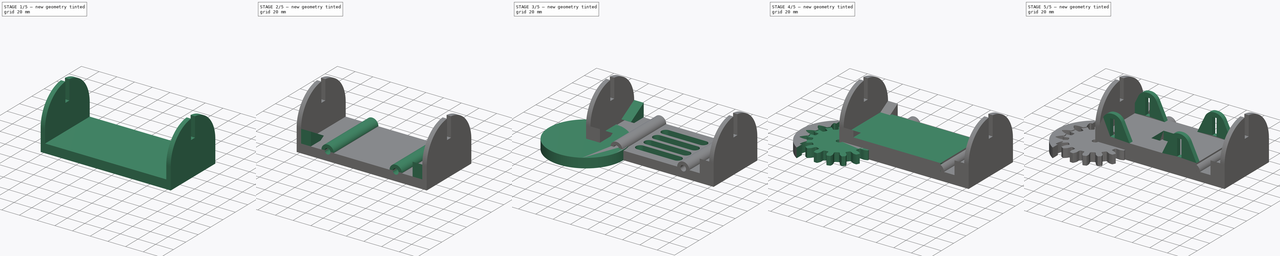
[diagram: build sequence overview — one tinted view per stage of 5, left to right]
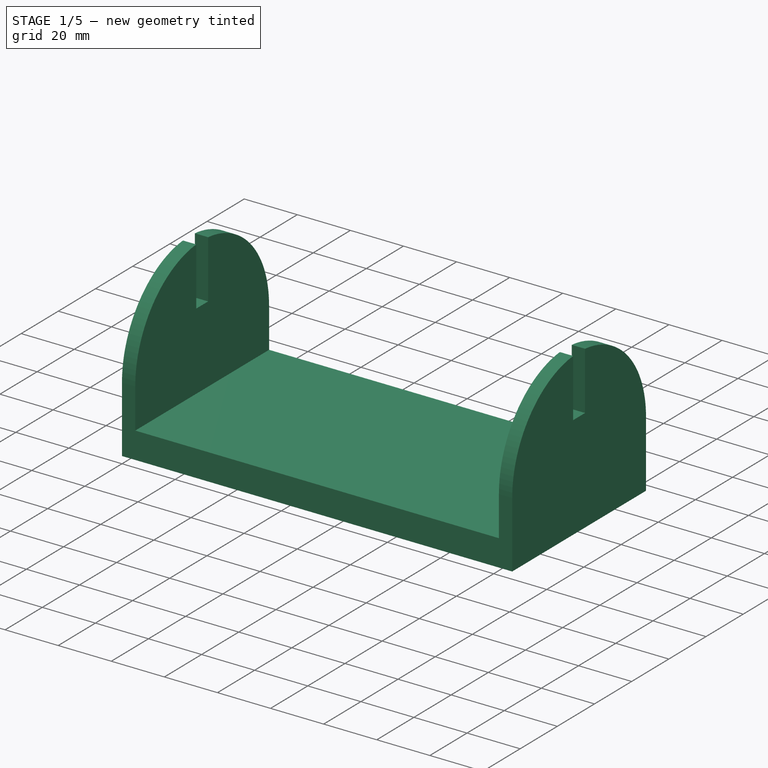
[diagram: stage 1 of 5 — iso view after this stage's code; geometry added in this stage tinted green]
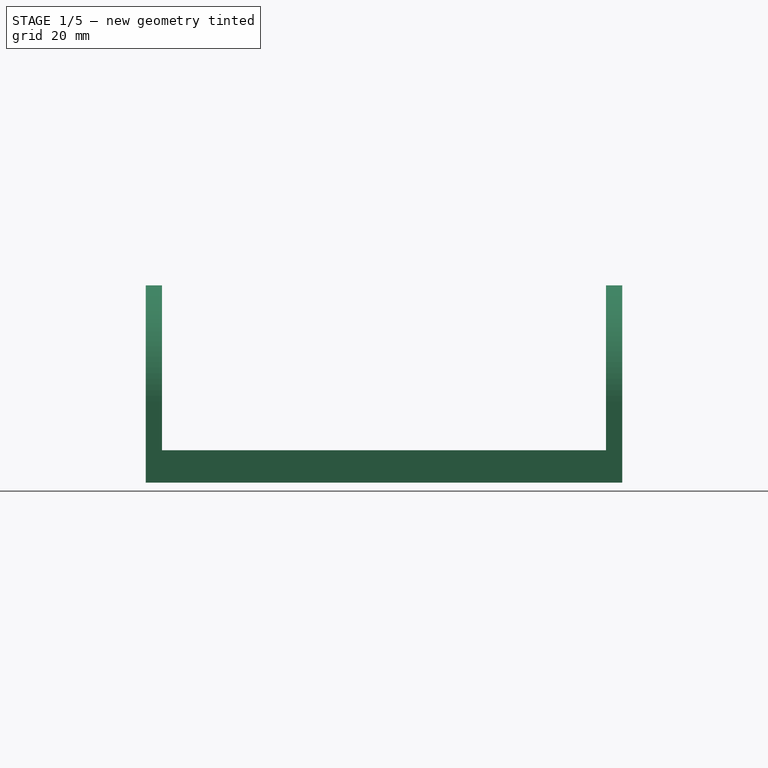
[diagram: stage 1 of 5 — front view after this stage's code; geometry added in this stage tinted green]
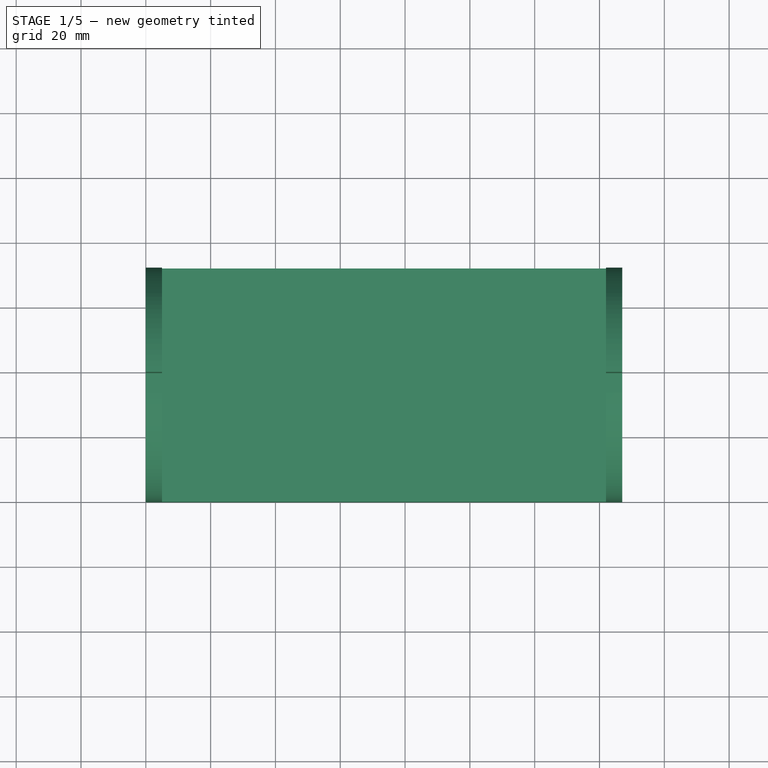
[diagram: stage 1 of 5 — top view after this stage's code; geometry added in this stage tinted green]
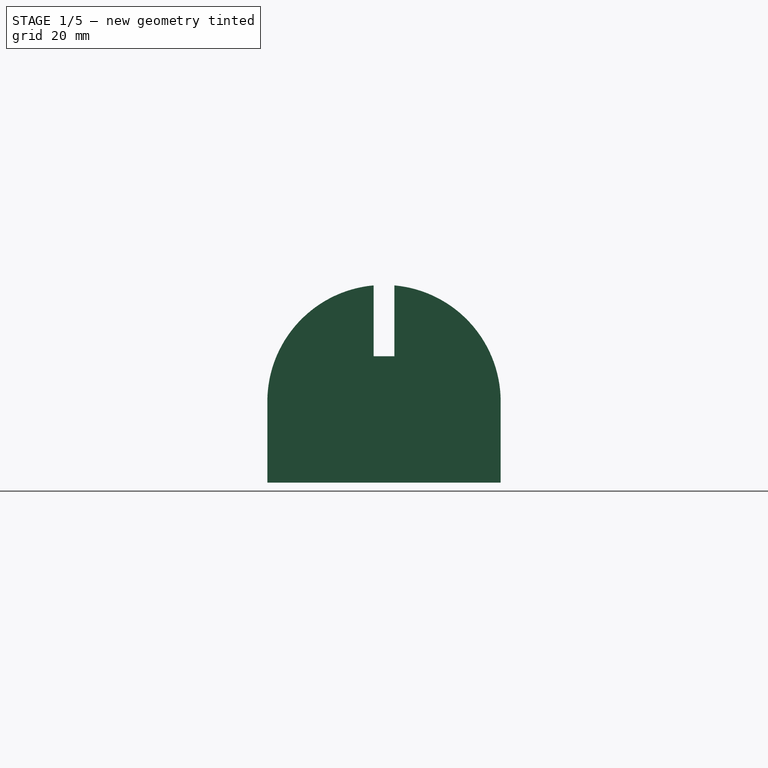
[diagram: stage 1 of 5 — right view after this stage's code; geometry added in this stage tinted green]
FCSTD DOCUMENT  (FreeCAD 0.20R29603 (Git))
Label: 24v Fan Support
License: All rights reserved
LicenseURL: http://en.wikipedia.org/wiki/All_rights_reserved
objects: PartDesign::Body×5, PartDesign::AdditiveCylinder×5, PartDesign::AdditiveBox×4, PartDesign::SubtractiveBox×4, PartDesign::SubtractiveCylinder×4, PartDesign::AdditivePrism×4, Sketcher::SketchObject×2, PartDesign::Pad×2, PartDesign::LinearPattern×2, Part::Part2DObjectPython×2, PartDesign::Pocket×2, PartDesign::Fillet×1, PartDesign::SubtractivePrism×1, App::Link×1
note: 65 computed .brp shape members not serialized (recipe doc carries the construction recipe); baked Part::Feature solids carry a one-line shape summary decoded from their .brp

FEATURE [PartDesign::Body] Body002  label="Base Gear"
  Group = -> [InvoluteGear001,Cylinder002,Box003,Pocket]
  Origin = -> Origin002
  Placement = pos=(-2e-15,31,9) rot=(0,-1,0;1.5708rad)
  Tip = -> Pocket
FEATURE [PartDesign::AdditiveBox] Box004
  AttacherType = Attacher::AttachEngine3D
  Height = 10
  Length = 147
  MapMode = 5
  Support = -> [XY_Plane003]
  Width = 72
FEATURE [PartDesign::AdditiveBox] Box005
  AttacherType = Attacher::AttachEngine3D
  AttachmentOffset = pos=(0,0,10) rot=(0,0,1;0rad)
  BaseFeature = -> Box004
  Height = 15
  Length = 5
  MapMode = 5
  Placement = pos=(0,0,10) rot=(0,0,1;0rad)
  Support = -> [XY_Plane003]
  Width = 72
FEATURE [PartDesign::AdditiveCylinder] Cylinder003
  Angle = 180
  AttacherType = Attacher::AttachEngine3D
  AttachmentOffset = pos=(36,25,0) rot=(0,0,1;0rad)
  BaseFeature = -> Box005
  FirstAngle = 0
  Height = 5
  MapMode = 5
  Placement = pos=(2.4e-15,36,25) rot=(0.57735,0.57735,0.57735;2.0944rad)
  Radius = 36
  SecondAngle = 0
  Support = -> [YZ_Plane003]
FEATURE [App::Link] Link  label="Base Gear 2"
  LinkPlacement = pos=(126,31,9.00002) rot=(0,-1,0;1.5708rad)
  LinkedObject = -> Body002
  Placement = pos=(126,31,9.00002) rot=(0,-1,0;1.5708rad)
FEATURE [PartDesign::AdditiveBox] Box006
  AttacherType = Attacher::AttachEngine3D
  AttachmentOffset = pos=(142,0,10) rot=(0,0,1;0rad)
  BaseFeature = -> Cylinder003
  Height = 15
  Length = 5
  MapMode = 5
  Placement = pos=(142,0,10) rot=(0,0,1;0rad)
  Support = -> [XY_Plane003]
  Width = 72
FEATURE [PartDesign::AdditiveCylinder] Cylinder004
  Angle = 180
  AttacherType = Attacher::AttachEngine3D
  AttachmentOffset = pos=(36,25,142) rot=(0,0,1;0rad)
  BaseFeature = -> Box006
  FirstAngle = 0
  Height = 5
  MapMode = 5
  Placement = pos=(142,36,25) rot=(0.57735,0.57735,0.57735;2.0944rad)
  Radius = 36
  SecondAngle = 0
  Support = -> [YZ_Plane003]
FEATURE [PartDesign::SubtractiveBox] Box007
  AttacherType = Attacher::AttachEngine3D
  AttachmentOffset = pos=(0,32.8,39) rot=(0,0,1;0rad)
  BaseFeature = -> Cylinder004
  Height = 22
  Length = 147
  MapMode = 5
  Placement = pos=(0,32.8,39) rot=(0,0,1;0rad)
  Support = -> [XY_Plane003]
  Width = 6.4
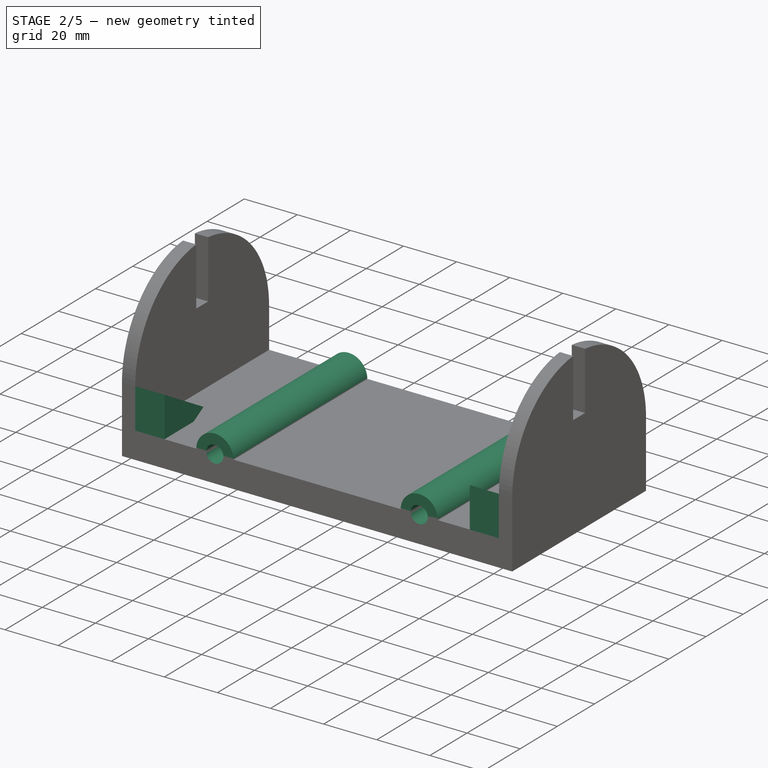
[diagram: stage 2 of 5 — iso view after this stage's code; geometry added in this stage tinted green]
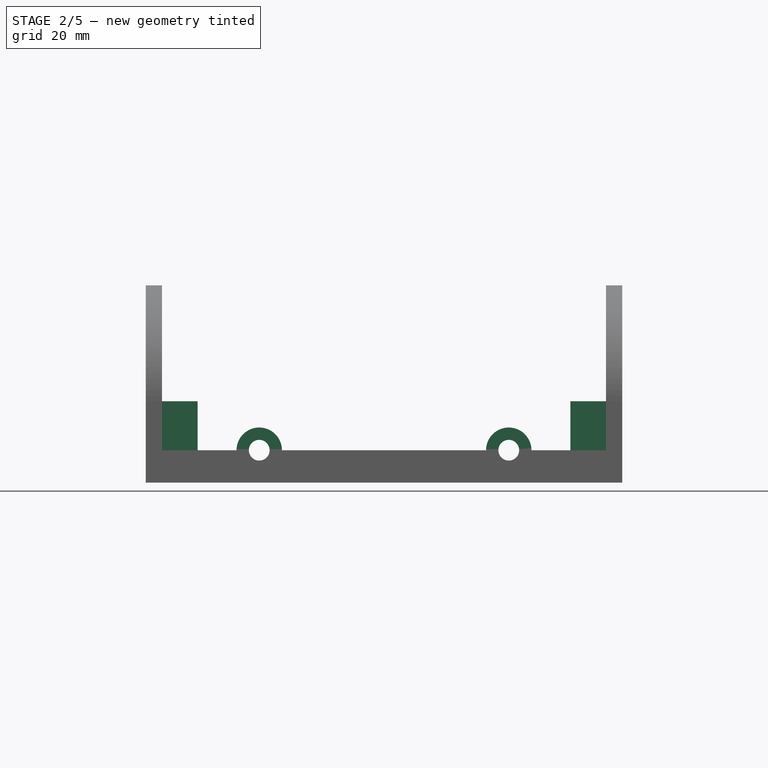
[diagram: stage 2 of 5 — front view after this stage's code; geometry added in this stage tinted green]
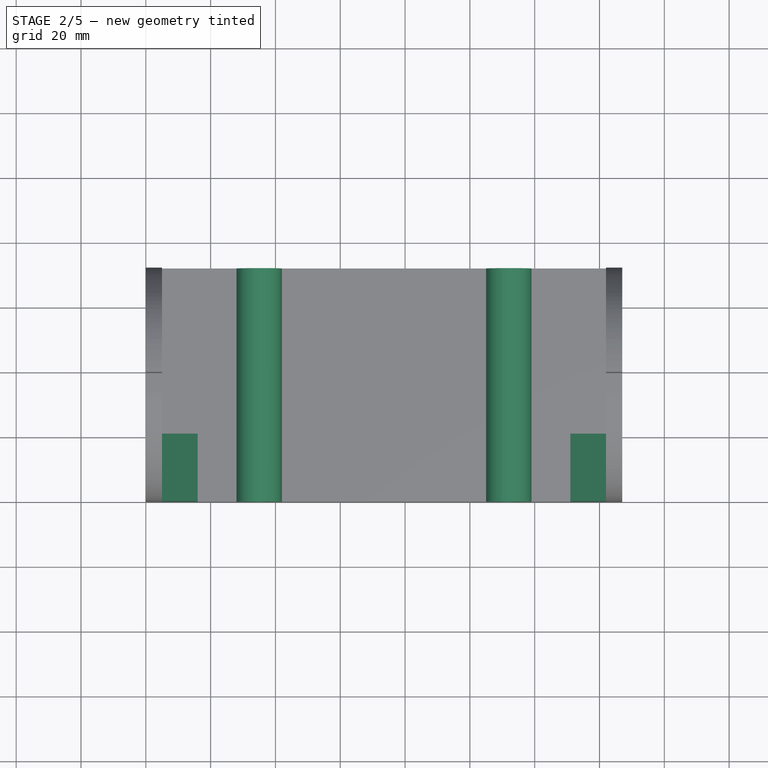
[diagram: stage 2 of 5 — top view after this stage's code; geometry added in this stage tinted green]
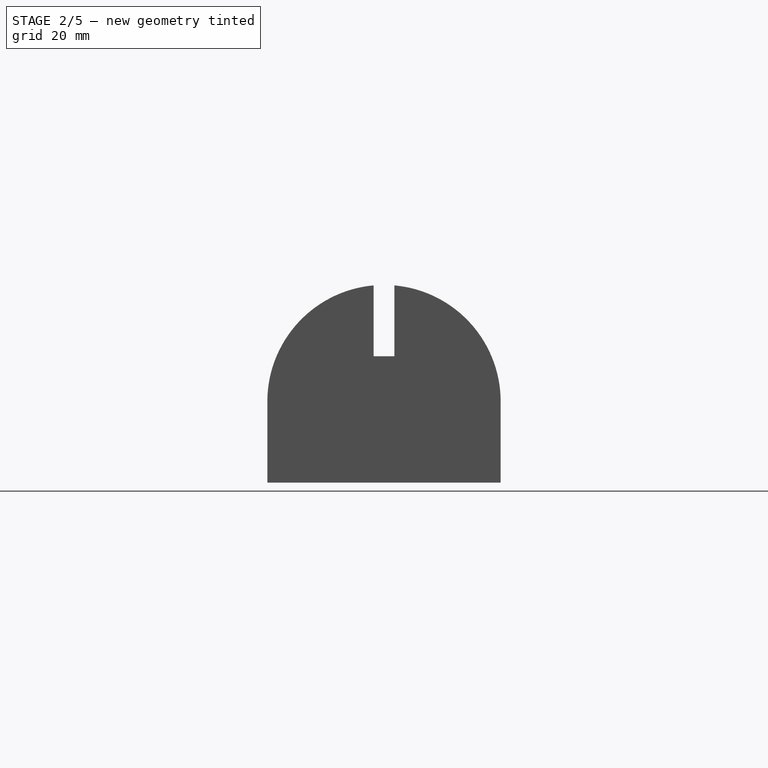
[diagram: stage 2 of 5 — right view after this stage's code; geometry added in this stage tinted green]
FEATURE [PartDesign::AdditiveCylinder] Cylinder005
  Angle = 360
  AttacherType = Attacher::AttachEngine3D
  AttachmentOffset = pos=(35,10,-72) rot=(0,0,1;0rad)
  BaseFeature = -> Box007
  FirstAngle = 0
  Height = 72
  MapMode = 5
  Placement = pos=(35,72,10) rot=(1,0,0;1.5708rad)
  Radius = 7
  SecondAngle = 0
  Support = -> [XZ_Plane003]
FEATURE [PartDesign::AdditiveCylinder] Cylinder006
  Angle = 360
  AttacherType = Attacher::AttachEngine3D
  AttachmentOffset = pos=(112,10,-72) rot=(0,0,1;0rad)
  BaseFeature = -> Cylinder005
  FirstAngle = 0
  Height = 72
  MapMode = 5
  Placement = pos=(112,72,10) rot=(1,0,0;1.5708rad)
  Radius = 7
  SecondAngle = 0
  Support = -> [XZ_Plane003]
FEATURE [PartDesign::SubtractiveCylinder] Cylinder007
  Angle = 360
  AttacherType = Attacher::AttachEngine3D
  AttachmentOffset = pos=(35,10,-72) rot=(0,0,1;0rad)
  BaseFeature = -> Cylinder006
  FirstAngle = 0
  Height = 72
  MapMode = 5
  Placement = pos=(35,72,10) rot=(1,0,0;1.5708rad)
  Radius = 3.2
  SecondAngle = 0
  Support = -> [XZ_Plane003]
FEATURE [PartDesign::SubtractiveCylinder] Cylinder008
  Angle = 360
  AttacherType = Attacher::AttachEngine3D
  AttachmentOffset = pos=(112,10,-72) rot=(0,0,1;0rad)
  BaseFeature = -> Cylinder007
  FirstAngle = 0
  Height = 72
  MapMode = 5
  Placement = pos=(112,72,10) rot=(1,0,0;1.5708rad)
  Radius = 3.2
  SecondAngle = 0
  Support = -> [XZ_Plane003]
FEATURE [PartDesign::AdditivePrism] Prism001
  AttacherType = Attacher::AttachEngine3D
  AttachmentOffset = pos=(7,13,5) rot=(0,0,1;0rad)
  BaseFeature = -> Cylinder008
  Circumradius = 14
  FirstAngle = 0
  Height = 11
  MapMode = 5
  Placement = pos=(5,7,13) rot=(0.57735,0.57735,0.57735;2.0944rad)
  Polygon = 3
  SecondAngle = 0
  Support = -> [YZ_Plane003]
FEATURE [PartDesign::AdditivePrism] Prism002
  AttacherType = Attacher::AttachEngine3D
  AttachmentOffset = pos=(7,13,131) rot=(0,0,1;0rad)
  BaseFeature = -> Prism001
  Circumradius = 14
  FirstAngle = 0
  Height = 11
  MapMode = 5
  Placement = pos=(131,7,13) rot=(0.57735,0.57735,0.57735;2.0944rad)
  Polygon = 3
  SecondAngle = 0
  Support = -> [YZ_Plane003]
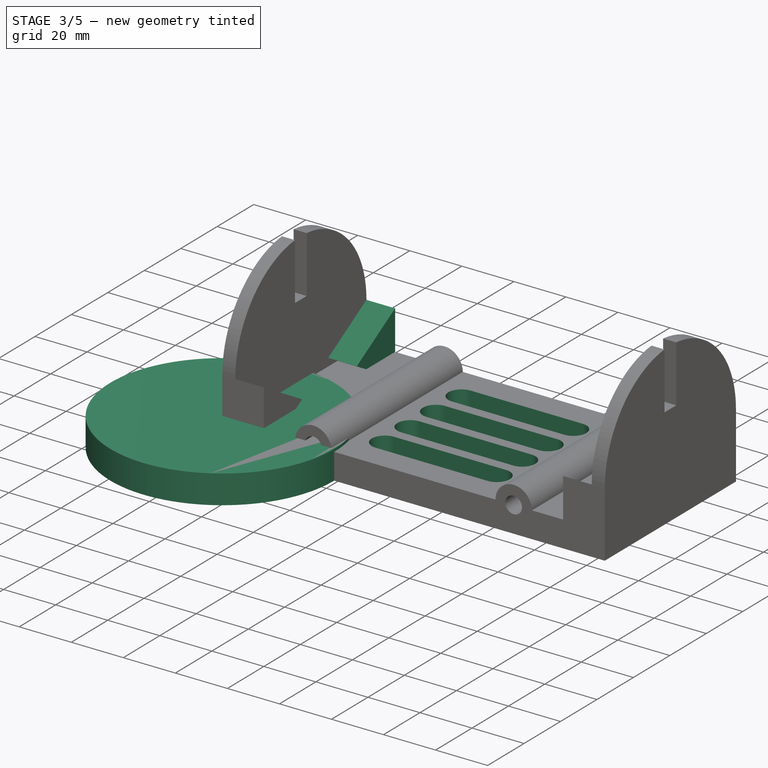
[diagram: stage 3 of 5 — iso view after this stage's code; geometry added in this stage tinted green]
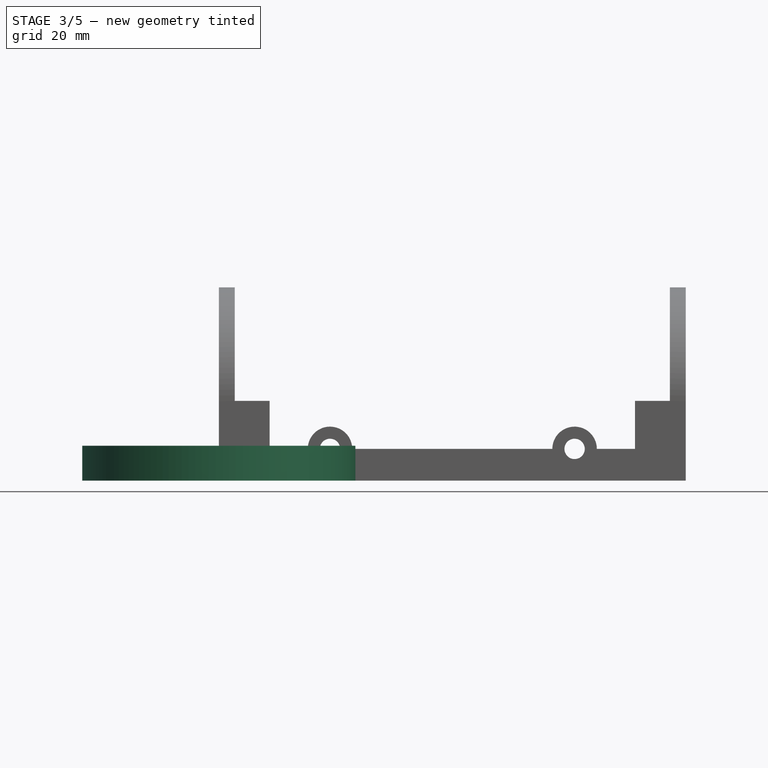
[diagram: stage 3 of 5 — front view after this stage's code; geometry added in this stage tinted green]
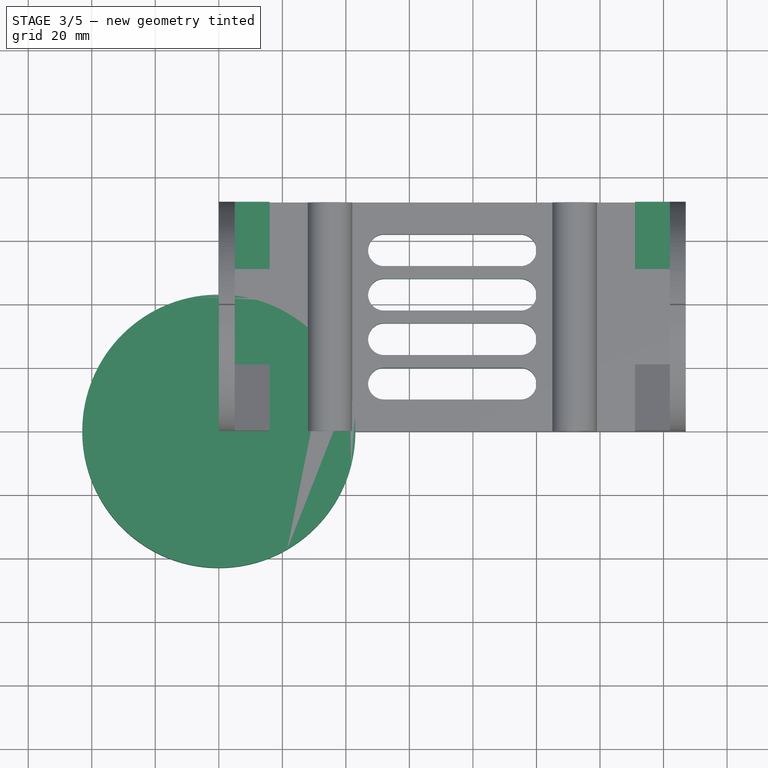
[diagram: stage 3 of 5 — top view after this stage's code; geometry added in this stage tinted green]
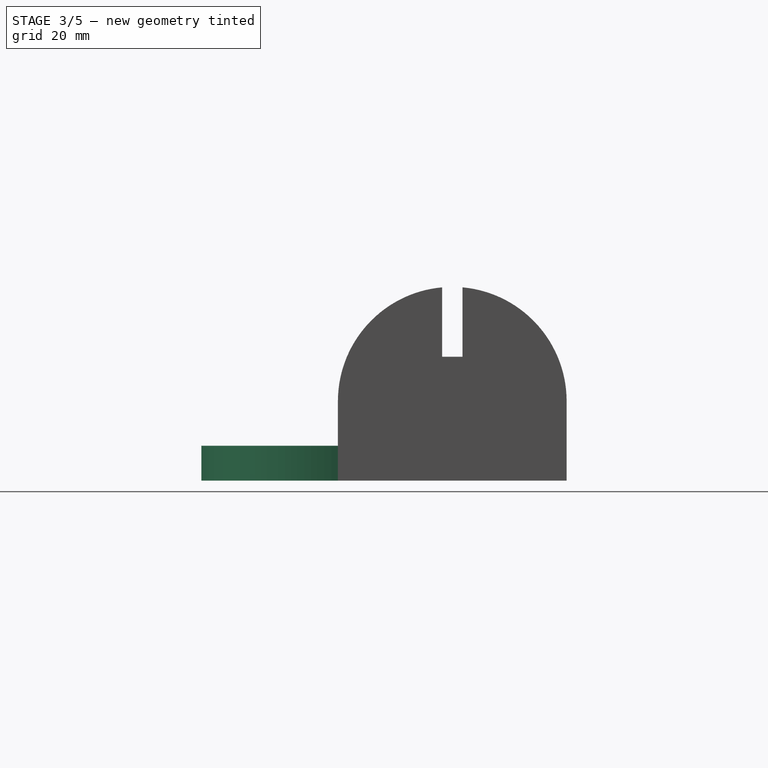
[diagram: stage 3 of 5 — right view after this stage's code; geometry added in this stage tinted green]
FEATURE [PartDesign::Body] Body001  label="Gears"
  Group = -> [InvoluteGear,Pad001,Prism,Cylinder001]
  Origin = -> Origin001
  Placement = pos=(-10,31,9) rot=(0,1,0;1.5708rad)
  Tip = -> Cylinder001
FEATURE [Part::Part2DObjectPython] InvoluteGear001  # Draft 2D object (typed FeaturePython)
  ExternalGear = false
  HighPrecision = true
  Modules = 4.4
  NumberOfTeeth = 15
  PressureAngle = 29
FEATURE [PartDesign::AdditiveCylinder] Cylinder002
  Angle = 360
  AttacherType = Attacher::AttachEngine3D
  FirstAngle = 0
  Height = 11
  Radius = 43
  SecondAngle = 0
FEATURE [PartDesign::AdditivePrism] Prism003
  AttacherType = Attacher::AttachEngine3D
  AttachmentOffset = pos=(65,13,131) rot=(0,0,1;3.14159rad)
  BaseFeature = -> Prism002
  Circumradius = 14
  FirstAngle = 0
  Height = 11
  MapMode = 5
  Placement = pos=(131,65,13) rot=(0.57735,-0.57735,0.57735;4.18879rad)
  Polygon = 3
  SecondAngle = 0
  Support = -> [YZ_Plane003]
FEATURE [PartDesign::AdditivePrism] Prism004
  AttacherType = Attacher::AttachEngine3D
  AttachmentOffset = pos=(65,13,5) rot=(0,0,1;3.14159rad)
  BaseFeature = -> Prism003
  Circumradius = 14
  FirstAngle = 0
  Height = 11
  MapMode = 5
  Placement = pos=(5,65,13) rot=(0.57735,-0.57735,0.57735;4.18879rad)
  Polygon = 3
  SecondAngle = 0
  Support = -> [YZ_Plane003]
FEATURE [Sketcher::SketchObject] Sketch001
  FullyConstrained = true
  MapMode = 5
  Support = -> [XY_Plane003]
  sketch-geometry (4):
    g0: ArcOfCircle CenterX=52 CenterY=15 CenterZ=0 NormalX=0 NormalY=0 NormalZ=1 AngleXU=0 Radius=5 StartAngle=1.5708 EndAngle=4.71239
    g1: ArcOfCircle CenterX=95 CenterY=15 CenterZ=0 NormalX=0 NormalY=0 NormalZ=1 AngleXU=0 Radius=5 StartAngle=4.71239 EndAngle=7.85398
    g2: LineSegment StartX=52 StartY=10 StartZ=0 EndX=95 EndY=10 EndZ=0
    g3: LineSegment StartX=95 StartY=20 StartZ=0 EndX=52 EndY=20 EndZ=0
  constraints (10):
    c: Tangent(g0,g2) = -1.5708
    c: Tangent(g2,g1) = -1.5708
    c: Tangent(g1,g3) = -1.5708
    c: Tangent(g3,g0) = -1.5708
    c: Equal(g0,g1)
    c: Horizontal(g2)
    c: DistanceX(g-1,g0) = 52
    c: DistanceX(g0,g1) = 43
    c: DistanceY(g-1,g0) = 15
    c: DistanceY(g1,g1) = 10
FEATURE [PartDesign::Pocket] Pocket001
  BaseFeature = -> Prism004
  Direction = (0,0,-1)
  Length = 10
  Length2 = 5
  Placement = pos=(5,65,13) rot=(0.57735,-0.57735,0.57735;4.18879rad)
  Profile = -> Sketch001
  ReferenceAxis = -> Sketch001 [N_Axis]
  Reversed = true
  Type = 0
FEATURE [PartDesign::LinearPattern] LinearPattern001
  BaseFeature = -> Pocket001
  Direction = -> Sketch001 [V_Axis]
  Length = 42
  Occurrences = 4
  Originals = -> [Pocket001]
  Placement = pos=(5,65,13) rot=(0.57735,-0.57735,0.57735;4.18879rad)
FEATURE [PartDesign::Body] Body003  label="Base"
  Group = -> [Box004,Box005,Cylinder003,Box006,Cylinder004,Box007,Cylinder005,Cylinder006,Cylinder007,Cylinder008,Prism001,Prism002,Prism003,Prism004,Sketch001,Pocket001,LinearPattern001]
  Origin = -> Origin003
  Placement = pos=(-16,-5,-39) rot=(0,0,1;0rad)
  Tip = -> LinearPattern001
FEATURE [PartDesign::Body] Body004  label="Tail"
  Origin = -> Origin004
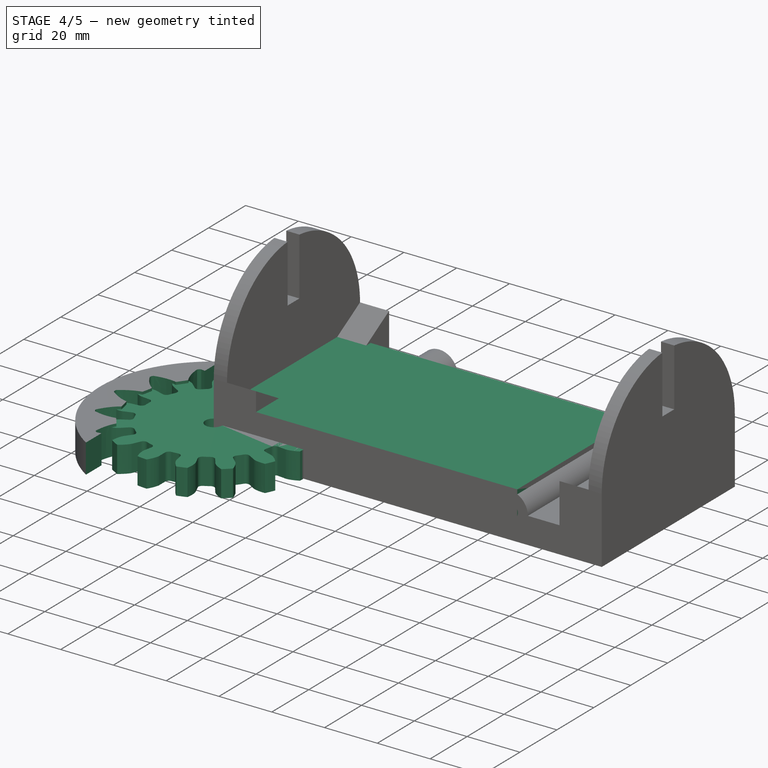
[diagram: stage 4 of 5 — iso view after this stage's code; geometry added in this stage tinted green]
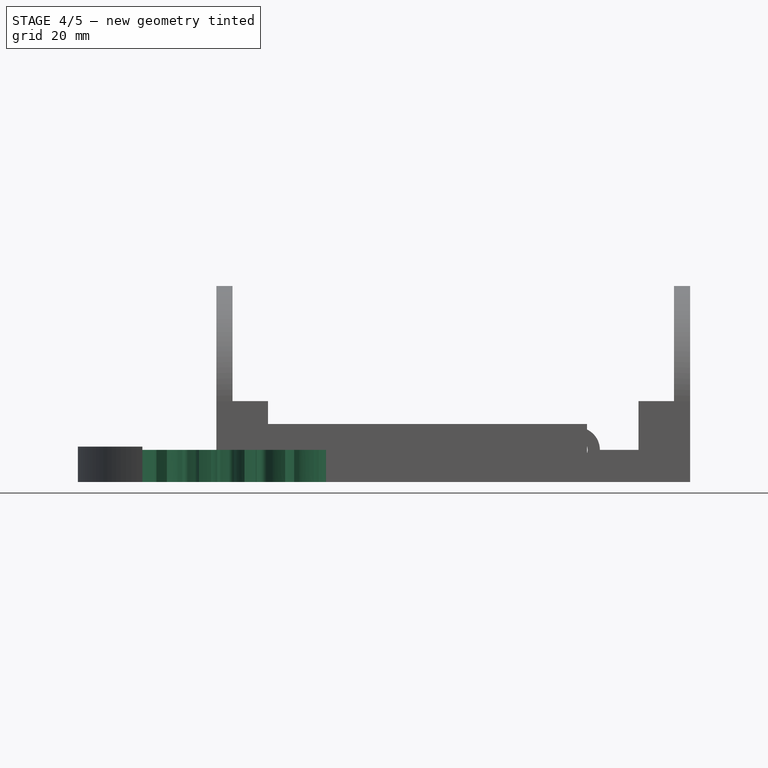
[diagram: stage 4 of 5 — front view after this stage's code; geometry added in this stage tinted green]
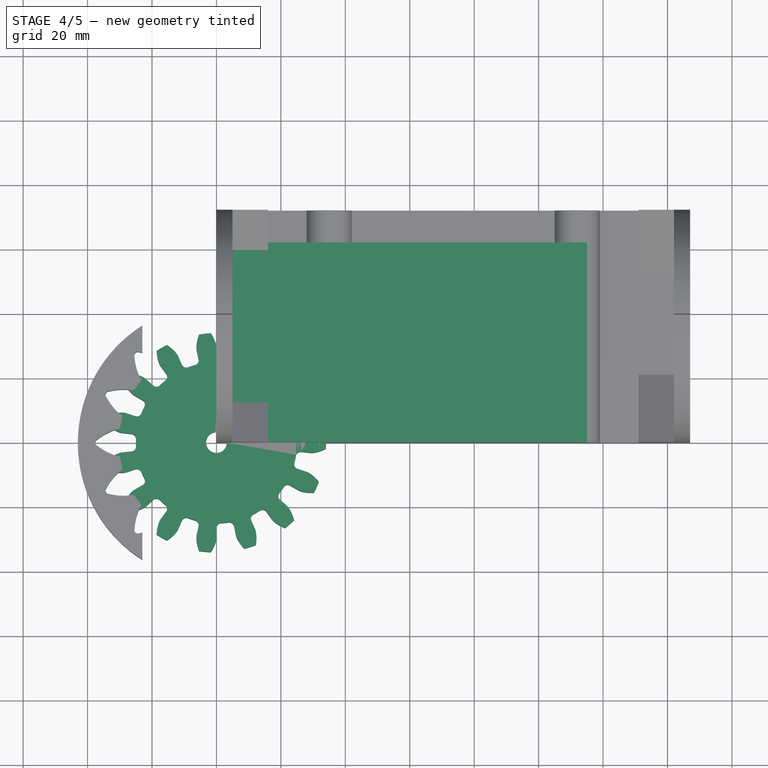
[diagram: stage 4 of 5 — top view after this stage's code; geometry added in this stage tinted green]
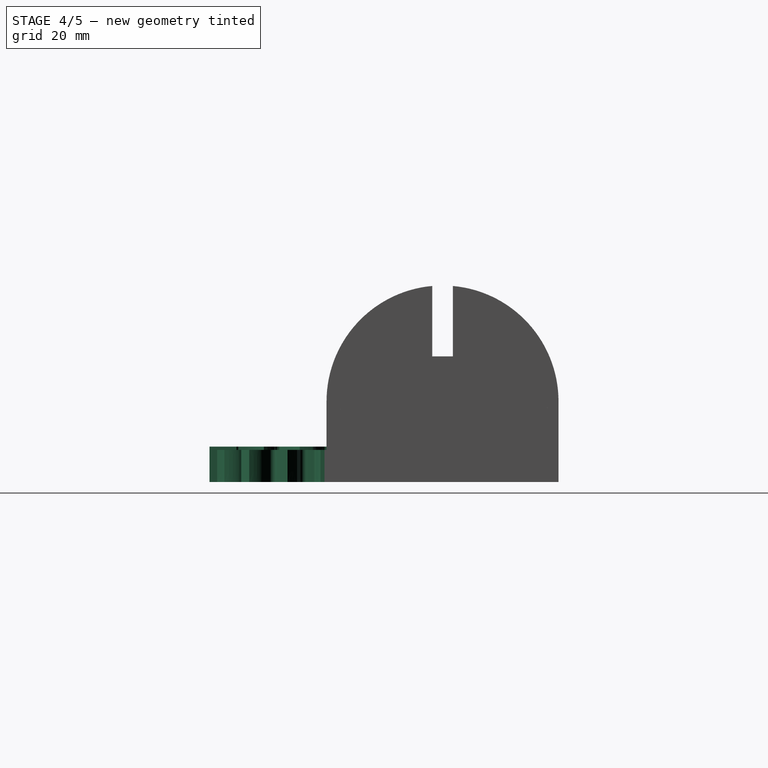
[diagram: stage 4 of 5 — right view after this stage's code; geometry added in this stage tinted green]
FEATURE [PartDesign::AdditiveBox] Box
  AttacherType = Attacher::AttachEngine3D
  Height = 18
  Length = 115
  MapMode = 5
  Support = -> [XY_Plane]
  Width = 62
FEATURE [PartDesign::Body] Body
  Group = -> [Box,Sketch,Pad,LinearPattern,Box001,Box002,Cylinder,Fillet]
  Origin = -> Origin
  Tip = -> Fillet
FEATURE [Part::Part2DObjectPython] InvoluteGear  # Draft 2D object (typed FeaturePython)
  ExternalGear = true
  HighPrecision = true
  Modules = 4
  NumberOfTeeth = 15
  PressureAngle = 10
FEATURE [PartDesign::Pad] Pad001
  Direction = (0,0,1)
  Length = 10
  Length2 = 10
  Profile = -> InvoluteGear
  ReferenceAxis = -> InvoluteGear [N_Axis]
  Type = 0
FEATURE [PartDesign::SubtractivePrism] Prism
  AttacherType = Attacher::AttachEngine3D
  BaseFeature = -> Pad001
  Circumradius = 5.8
  FirstAngle = 0
  Height = 6
  Polygon = 6
  SecondAngle = 0
FEATURE [PartDesign::SubtractiveCylinder] Cylinder001
  Angle = 360
  AttacherType = Attacher::AttachEngine3D
  BaseFeature = -> Prism
  FirstAngle = 0
  Height = 10
  Radius = 3.2
  SecondAngle = 0
FEATURE [PartDesign::SubtractiveBox] Box003
  AttacherType = Attacher::AttachEngine3D
  AttachmentOffset = pos=(-23,-43,0) rot=(0,0,1;0rad)
  BaseFeature = -> Cylinder002
  Height = 11
  Length = 66
  MapMode = 5
  Placement = pos=(-23,-43,0) rot=(0,0,1;0rad)
  Support = -> [XY_Plane002]
  Width = 86
FEATURE [PartDesign::Pocket] Pocket
  BaseFeature = -> Box003
  Direction = (0,0,-1)
  Length = 11
  Length2 = 5
  Placement = pos=(-23,-43,0) rot=(0,0,1;0rad)
  Profile = -> InvoluteGear001
  ReferenceAxis = -> InvoluteGear001 [N_Axis]
  Reversed = true
  Type = 0
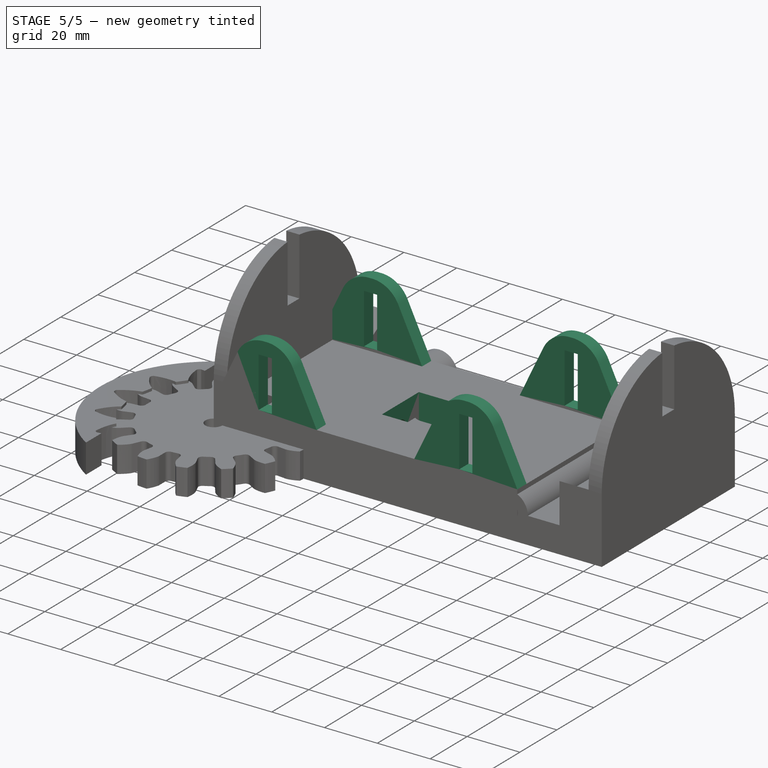
[diagram: stage 5 of 5 — iso view after this stage's code; geometry added in this stage tinted green]
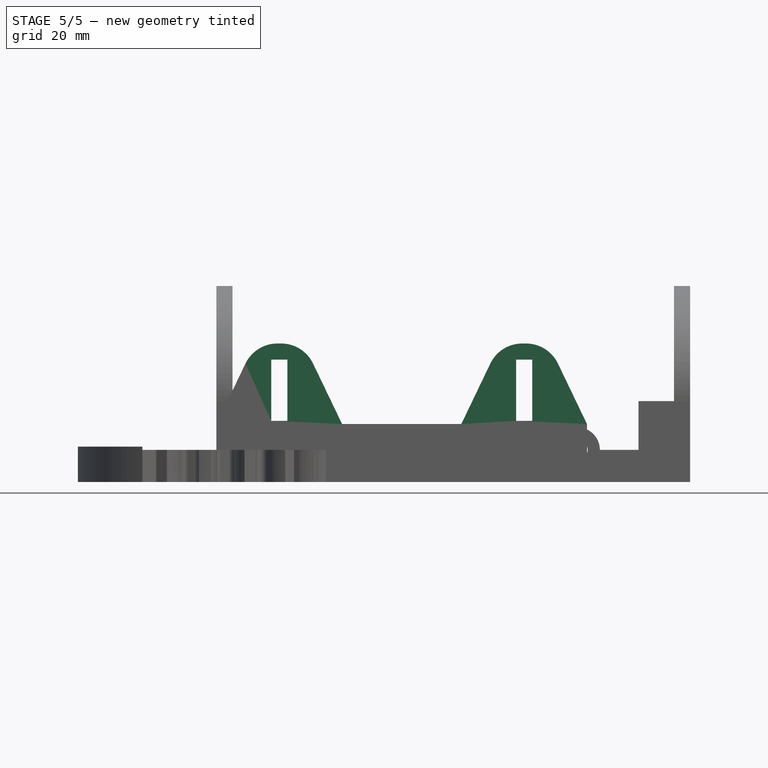
[diagram: stage 5 of 5 — front view after this stage's code; geometry added in this stage tinted green]
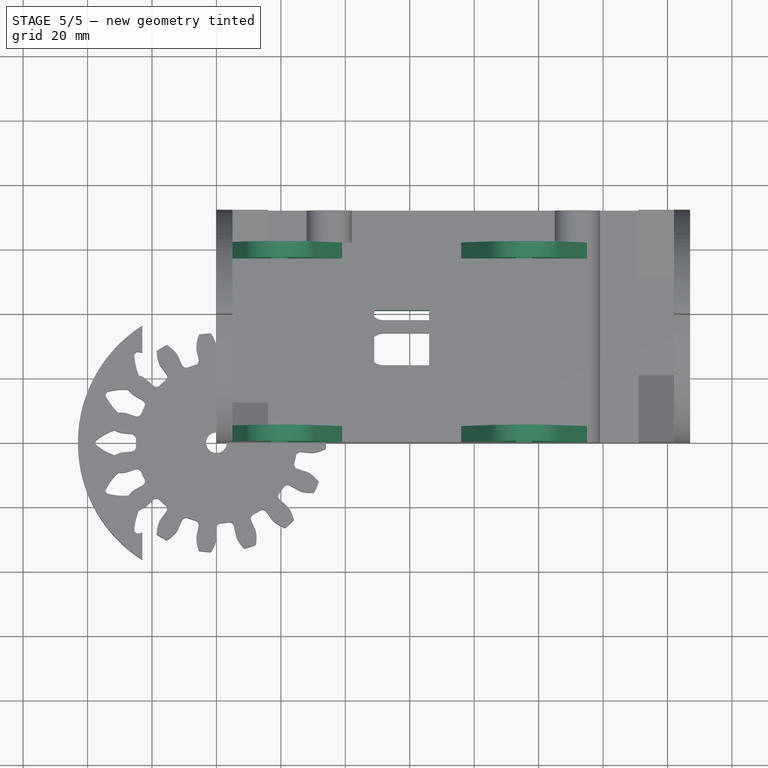
[diagram: stage 5 of 5 — top view after this stage's code; geometry added in this stage tinted green]
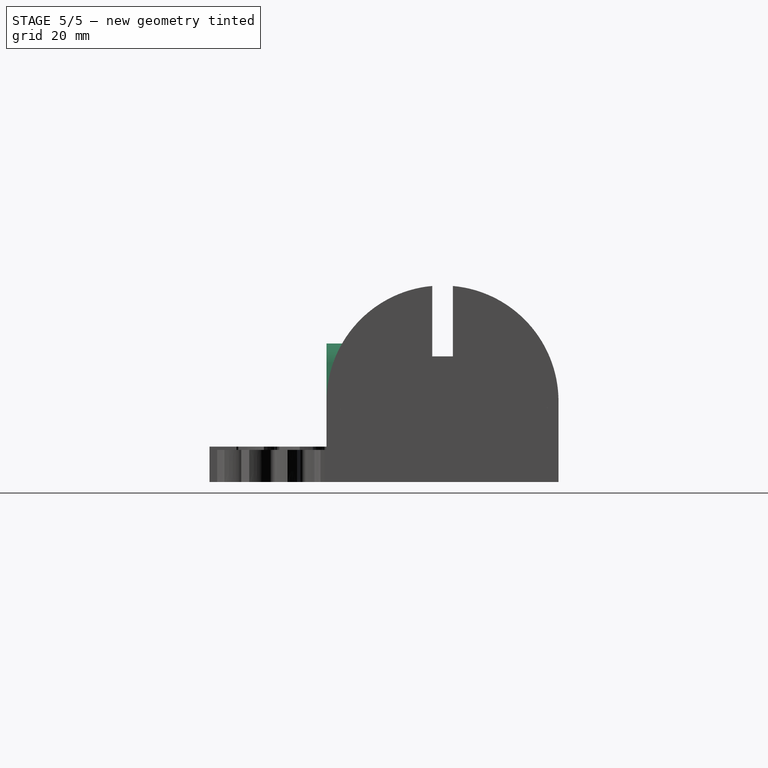
[diagram: stage 5 of 5 — right view after this stage's code; geometry added in this stage tinted green]
FEATURE [Sketcher::SketchObject] Sketch
  FullyConstrained = true
  MapMode = 5
  Placement = pos=(0,0,0) rot=(1,0,0;1.5708rad)
  Support = -> [XZ_Plane]
  sketch-geometry (8):
    g0: LineSegment StartX=17 StartY=38 StartZ=0 EndX=22 EndY=38 EndZ=0
    g1: LineSegment StartX=22 StartY=38 StartZ=0 EndX=22 EndY=19 EndZ=0
    g2: LineSegment StartX=22 StartY=19 StartZ=0 EndX=17 EndY=19 EndZ=0
    g3: LineSegment StartX=17 StartY=19 StartZ=0 EndX=17 EndY=38 EndZ=0
    g4: LineSegment StartX=0 StartY=18 StartZ=0 EndX=39 EndY=18 EndZ=0
    g5: LineSegment StartX=12 StartY=43 StartZ=0 EndX=27 EndY=43 EndZ=0
    g6: LineSegment StartX=27 StartY=43 StartZ=0 EndX=39 EndY=18 EndZ=0
    g7: LineSegment StartX=12 StartY=43 StartZ=0 EndX=0 EndY=18 EndZ=0
  constraints (24):
    c: Coincident(g0,g1)
    c: Coincident(g1,g2)
    c: Coincident(g2,g3)
    c: Coincident(g3,g0)
    c: Horizontal(g0)
    c: Horizontal(g2)
    c: Vertical(g1)
    c: Vertical(g3)
    c: DistanceY(g3,g3) = 19
    c: DistanceY(g-1,g2) = 19
    c: DistanceX(g0,g0) = 5
    c: DistanceX(g-1,g2) = 17
    c: Horizontal(g4)
    c: DistanceY(g-1,g4) = 18
    c: DistanceX(g-1,g4) = 0
    c: DistanceX(g4,g4) = 39
    c: Horizontal(g5)
    c: DistanceY(g-1,g5) = 43
    c: DistanceX(g5,g5) = 15
    c: DistanceX(g-1,g5) = 12
    c: Coincident(g5,g7)
    c: Coincident(g4,g7)
    c: Coincident(g5,g6)
    c: Coincident(g4,g6)
FEATURE [PartDesign::Pad] Pad
  BaseFeature = -> Box
  Direction = (0,-1,0)
  Length = 62
  Length2 = 0
  Profile = -> Sketch
  ReferenceAxis = -> Sketch [N_Axis]
  Reversed = true
  Type = 4
  UseCustomVector = true
FEATURE [PartDesign::LinearPattern] LinearPattern
  BaseFeature = -> Pad
  Direction = -> Sketch [H_Axis]
  Length = 76
  Occurrences = 2
  Originals = -> [Pad]
FEATURE [PartDesign::SubtractiveBox] Box001
  AttacherType = Attacher::AttachEngine3D
  AttachmentOffset = pos=(0,5,18) rot=(0,0,1;0rad)
  BaseFeature = -> LinearPattern
  Height = 25
  Length = 115
  MapMode = 5
  Placement = pos=(0,5,18) rot=(0,0,1;0rad)
  Support = -> [XY_Plane]
  Width = 52
FEATURE [PartDesign::SubtractiveBox] Box002
  AttacherType = Attacher::AttachEngine3D
  AttachmentOffset = pos=(49,21,0) rot=(0,0,1;0rad)
  BaseFeature = -> Box001
  Height = 18
  Length = 17
  MapMode = 5
  Placement = pos=(49,21,0) rot=(0,0,1;0rad)
  Support = -> [XY_Plane]
  Width = 20
FEATURE [PartDesign::SubtractiveCylinder] Cylinder
  Angle = 360
  AttacherType = Attacher::AttachEngine3D
  AttachmentOffset = pos=(31,9,0) rot=(0,0,1;0rad)
  BaseFeature = -> Box002
  FirstAngle = 0
  Height = 115
  MapMode = 5
  Placement = pos=(4.9e-15,31,9) rot=(0.57735,0.57735,0.57735;2.0944rad)
  Radius = 3.2
  SecondAngle = 0
  Support = -> [YZ_Plane]
FEATURE [PartDesign::Fillet] Fillet
  Base = -> Cylinder [Edge95,Edge106,Edge69,Edge21,Edge31,Edge93,Edge121,Edge99]
  BaseFeature = -> Cylinder
  Placement = pos=(5e-15,31,9) rot=(0.57735,0.57735,0.57735;2.0944rad)
  Radius = 11
  SupportTransform = false
  UseAllEdges = false
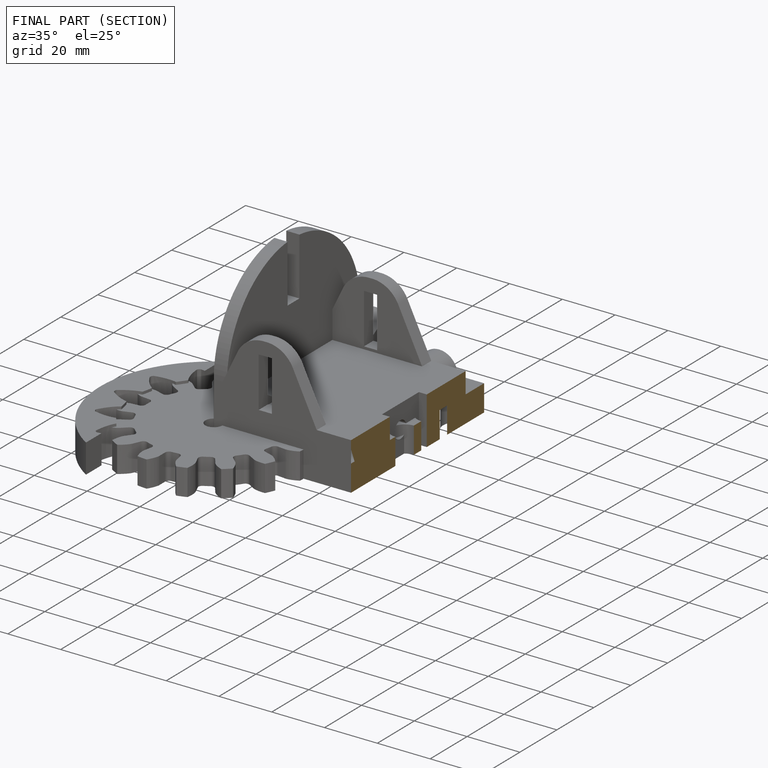
[diagram: finished part — half-section view (interior)]
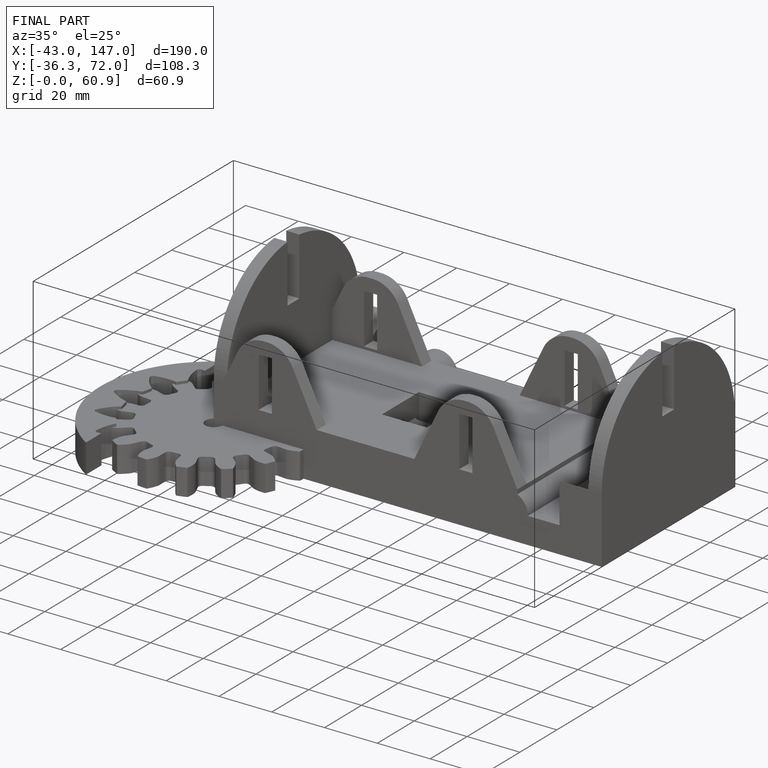
[diagram: finished part — iso view with bounding-box wireframe]
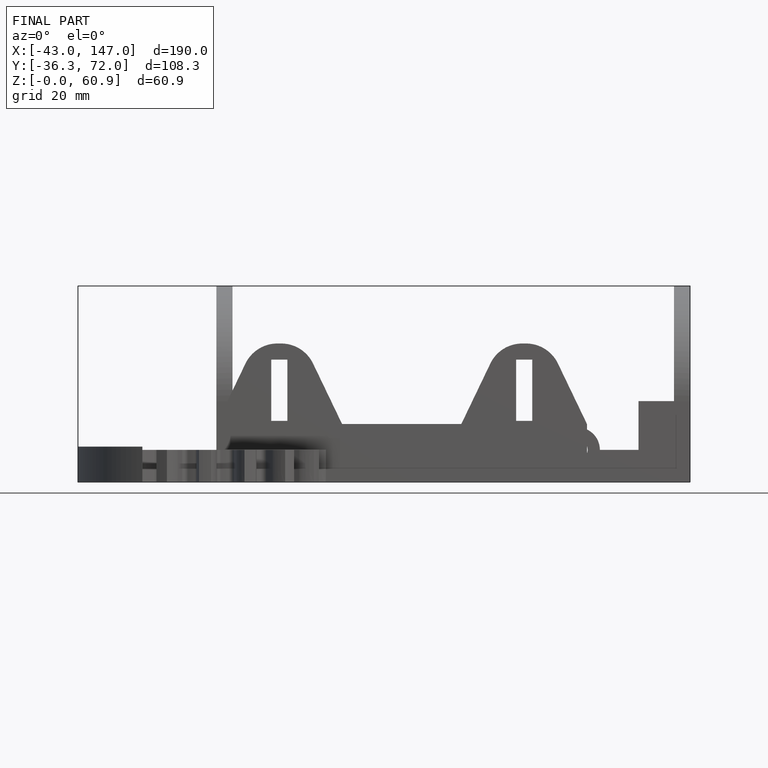
[diagram: finished part — front view with bounding-box wireframe]
